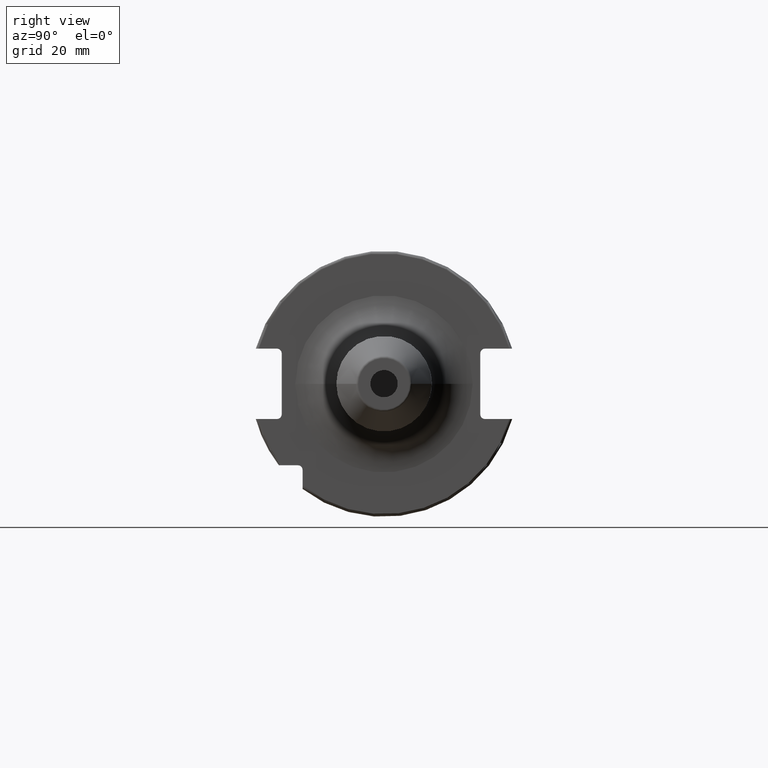
[diagram: clean part render]
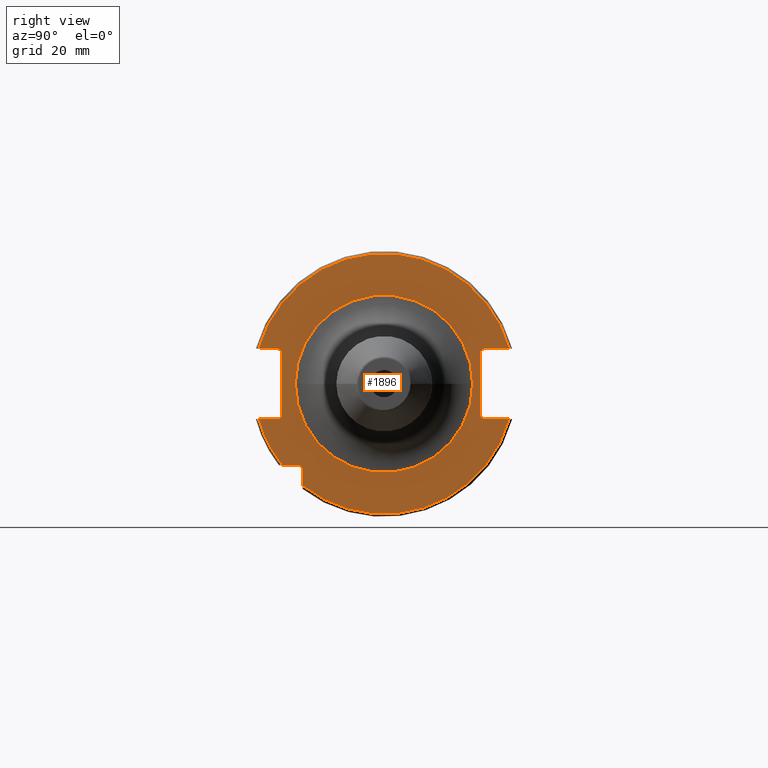
[diagram: same view with one face highlighted and labeled with its STEP entity id]
A machine part, right view. The second image highlights one B-rep face of the part: STEP entity #1896.
In plain terms, the highlighted planar face has unit normal (1, 0, 0).
Its self-contained STEP definition (entity closure, byte-faithful):
#130=CARTESIAN_POINT('',(1.905E1,3.705E1,1.115E1));
#131=DIRECTION('',(-1.E0,0.E0,0.E0));
#132=DIRECTION('',(0.E0,-1.E0,0.E0));
#133=AXIS2_PLACEMENT_3D('',#130,#131,#132);
#140=DIRECTION('',(0.E0,0.E0,1.E0));
#141=VECTOR('',#140,2.23E1);
#142=CARTESIAN_POINT('',(1.905E1,-3.75E1,-1.115E1));
#143=LINE('',#142,#141);
#144=DIRECTION('',(0.E0,1.E0,0.E0));
#145=VECTOR('',#144,6.711493733886E0);
#146=CARTESIAN_POINT('',(1.905E1,-4.596149373389E1,1.29E1));
#147=LINE('',#146,#145);
#148=DIRECTION('',(0.E0,-1.E0,0.E0));
#149=VECTOR('',#148,8.911493733886E0);
#150=CARTESIAN_POINT('',(1.905E1,4.596149373389E1,1.29E1));
#151=LINE('',#150,#149);
#152=DIRECTION('',(0.E0,0.E0,-1.E0));
#153=VECTOR('',#152,2.23E1);
#154=CARTESIAN_POINT('',(1.905E1,3.53E1,1.115E1));
#155=LINE('',#154,#153);
#156=DIRECTION('',(0.E0,-1.E0,0.E0));
#157=VECTOR('',#156,8.911493733886E0);
#158=CARTESIAN_POINT('',(1.905E1,4.596149373389E1,-1.29E1));
#159=LINE('',#158,#157);
#160=DIRECTION('',(0.E0,0.E0,1.E0));
#161=VECTOR('',#160,5.653810627237E0);
#162=CARTESIAN_POINT('',(1.905E1,-2.985E1,-3.725381062724E1));
#163=LINE('',#162,#161);
#164=DIRECTION('',(0.E0,-1.E0,0.E0));
#165=VECTOR('',#164,5.653810627237E0);
#166=CARTESIAN_POINT('',(1.905E1,-3.16E1,-2.985E1));
#167=LINE('',#166,#165);
#168=DIRECTION('',(0.E0,1.E0,0.E0));
#169=VECTOR('',#168,6.711493733886E0);
#170=CARTESIAN_POINT('',(1.905E1,-4.596149373389E1,-1.29E1));
#171=LINE('',#170,#169);
#172=CARTESIAN_POINT('',(1.905E1,0.E0,0.E0));
#173=DIRECTION('',(1.E0,0.E0,0.E0));
#174=DIRECTION('',(0.E0,-1.E0,0.E0));
#175=AXIS2_PLACEMENT_3D('',#172,#173,#174);
#177=CARTESIAN_POINT('',(1.905E1,0.E0,0.E0));
#178=DIRECTION('',(1.E0,0.E0,0.E0));
#179=DIRECTION('',(0.E0,1.E0,0.E0));
#180=AXIS2_PLACEMENT_3D('',#177,#178,#179);
#190=CARTESIAN_POINT('',(1.905E1,-3.925E1,-1.115E1));
#191=DIRECTION('',(-1.E0,0.E0,0.E0));
#192=DIRECTION('',(0.E0,1.E0,0.E0));
#193=AXIS2_PLACEMENT_3D('',#190,#191,#192);
#213=CARTESIAN_POINT('',(1.905E1,4.596149373389E1,-1.29E1));
#225=CARTESIAN_POINT('',(1.905E1,0.E0,0.E0));
#226=DIRECTION('',(-1.E0,0.E0,0.E0));
#227=DIRECTION('',(0.E0,9.627964123359E-1,-2.702278083268E-1));
#228=AXIS2_PLACEMENT_3D('',#225,#226,#227);
#230=CARTESIAN_POINT('',(1.905E1,-4.596149373389E1,-1.29E1));
#241=CARTESIAN_POINT('',(1.905E1,0.E0,0.E0));
#242=DIRECTION('',(-1.E0,0.E0,0.E0));
#243=DIRECTION('',(0.E0,-7.803888060170E-1,-6.252945797329E-1));
#244=AXIS2_PLACEMENT_3D('',#241,#242,#243);
#255=CARTESIAN_POINT('',(1.905E1,-3.725381062724E1,-2.985E1));
#261=CARTESIAN_POINT('',(1.905E1,3.705E1,-1.115E1));
#262=DIRECTION('',(-1.E0,0.E0,0.E0));
#263=DIRECTION('',(0.E0,0.E0,-1.E0));
#264=AXIS2_PLACEMENT_3D('',#261,#262,#263);
#326=CARTESIAN_POINT('',(1.905E1,-3.925E1,1.115E1));
#327=DIRECTION('',(-1.E0,0.E0,0.E0));
#328=DIRECTION('',(0.E0,0.E0,1.E0));
#329=AXIS2_PLACEMENT_3D('',#326,#327,#328);
#367=CARTESIAN_POINT('',(1.905E1,4.596149373389E1,1.29E1));
#378=CARTESIAN_POINT('',(1.905E1,0.E0,0.E0));
#379=DIRECTION('',(1.E0,0.E0,0.E0));
#380=DIRECTION('',(0.E0,9.627964123359E-1,2.702278083268E-1));
#381=AXIS2_PLACEMENT_3D('',#378,#379,#380);
#392=CARTESIAN_POINT('',(1.905E1,-4.596149373389E1,1.29E1));
#741=CARTESIAN_POINT('',(1.905E1,-3.16E1,-3.16E1));
#742=DIRECTION('',(-1.E0,0.E0,0.E0));
#743=DIRECTION('',(0.E0,0.E0,1.E0));
#744=AXIS2_PLACEMENT_3D('',#741,#742,#743);
#1539=VERTEX_POINT('',#367);
#1540=VERTEX_POINT('',#392);
#1543=VERTEX_POINT('',#213);
#1544=VERTEX_POINT('',#230);
#1563=CARTESIAN_POINT('',(1.905E1,-2.985E1,-3.725381062724E1));
#1564=VERTEX_POINT('',#1563);
#1571=CARTESIAN_POINT('',(1.905E1,-3.75E1,-1.115E1));
#1573=VERTEX_POINT('',#1571);
#1575=CARTESIAN_POINT('',(1.905E1,-3.925E1,-1.29E1));
#1577=VERTEX_POINT('',#1575);
#1579=CARTESIAN_POINT('',(1.905E1,-3.925E1,1.29E1));
#1581=VERTEX_POINT('',#1579);
#1583=CARTESIAN_POINT('',(1.905E1,-3.75E1,1.115E1));
#1585=VERTEX_POINT('',#1583);
#1587=CARTESIAN_POINT('',(1.905E1,3.53E1,1.115E1));
#1589=VERTEX_POINT('',#1587);
#1591=CARTESIAN_POINT('',(1.905E1,3.705E1,1.29E1));
#1593=VERTEX_POINT('',#1591);
#1595=CARTESIAN_POINT('',(1.905E1,3.705E1,-1.29E1));
#1597=VERTEX_POINT('',#1595);
#1599=CARTESIAN_POINT('',(1.905E1,3.53E1,-1.115E1));
#1601=VERTEX_POINT('',#1599);
#1603=CARTESIAN_POINT('',(1.905E1,-3.16E1,-2.985E1));
#1604=CARTESIAN_POINT('',(1.905E1,-2.985E1,-3.16E1));
#1605=VERTEX_POINT('',#1603);
#1606=VERTEX_POINT('',#1604);
#1627=CARTESIAN_POINT('',(1.905E1,-3.25E1,0.E0));
#1628=CARTESIAN_POINT('',(1.905E1,3.25E1,0.E0));
#1629=VERTEX_POINT('',#1627);
#1630=VERTEX_POINT('',#1628);
#1668=VERTEX_POINT('',#255);
#1853=CARTESIAN_POINT('',(1.905E1,0.E0,0.E0));
#1854=DIRECTION('',(1.E0,0.E0,0.E0));
#1855=DIRECTION('',(0.E0,-1.E0,0.E0));
#1856=AXIS2_PLACEMENT_3D('',#1853,#1854,#1855);
#1857=PLANE('',#1856);
#1859=ORIENTED_EDGE('',*,*,#1858,.T.);
#1861=ORIENTED_EDGE('',*,*,#1860,.F.);
#1863=ORIENTED_EDGE('',*,*,#1862,.F.);
#1865=ORIENTED_EDGE('',*,*,#1864,.F.);
#1867=ORIENTED_EDGE('',*,*,#1866,.T.);
#1868=ORIENTED_EDGE('',*,*,#1844,.F.);
#1869=ORIENTED_EDGE('',*,*,#1833,.T.);
#1871=ORIENTED_EDGE('',*,*,#1870,.F.);
#1873=ORIENTED_EDGE('',*,*,#1872,.F.);
#1875=ORIENTED_EDGE('',*,*,#1874,.T.);
#1877=ORIENTED_EDGE('',*,*,#1876,.T.);
#1879=ORIENTED_EDGE('',*,*,#1878,.F.);
#1881=ORIENTED_EDGE('',*,*,#1880,.T.);
#1883=ORIENTED_EDGE('',*,*,#1882,.T.);
#1885=ORIENTED_EDGE('',*,*,#1884,.T.);
#1887=ORIENTED_EDGE('',*,*,#1886,.F.);
#1888=EDGE_LOOP('',(#1859,#1861,#1863,#1865,#1867,#1868,#1869,#1871,#1873,#1875,
#1877,#1879,#1881,#1883,#1885,#1887));
#1889=FACE_OUTER_BOUND('',#1888,.F.);
#1891=ORIENTED_EDGE('',*,*,#1890,.T.);
#1893=ORIENTED_EDGE('',*,*,#1892,.T.);
#1894=EDGE_LOOP('',(#1891,#1893));
#1895=FACE_BOUND('',#1894,.F.);
#1896=ADVANCED_FACE('',(#1889,#1895),#1857,.T.);
#134=CIRCLE('',#133,1.75E0);
#176=CIRCLE('',#175,3.25E1);
#181=CIRCLE('',#180,3.25E1);
#194=CIRCLE('',#193,1.75E0);
#229=CIRCLE('',#228,4.77375E1);
#245=CIRCLE('',#244,4.77375E1);
#265=CIRCLE('',#264,1.75E0);
#330=CIRCLE('',#329,1.75E0);
#382=CIRCLE('',#381,4.77375E1);
#745=CIRCLE('',#744,1.75E0);
#1833=EDGE_CURVE('',#1589,#1601,#155,.T.);
#1844=EDGE_CURVE('',#1589,#1593,#134,.T.);
#1858=EDGE_CURVE('',#1573,#1585,#143,.T.);
#1860=EDGE_CURVE('',#1581,#1585,#330,.T.);
#1862=EDGE_CURVE('',#1540,#1581,#147,.T.);
#1864=EDGE_CURVE('',#1539,#1540,#382,.T.);
#1866=EDGE_CURVE('',#1539,#1593,#151,.T.);
#1870=EDGE_CURVE('',#1597,#1601,#265,.T.);
#1872=EDGE_CURVE('',#1543,#1597,#159,.T.);
#1874=EDGE_CURVE('',#1543,#1564,#229,.T.);
#1876=EDGE_CURVE('',#1564,#1606,#163,.T.);
#1878=EDGE_CURVE('',#1605,#1606,#745,.T.);
#1880=EDGE_CURVE('',#1605,#1668,#167,.T.);
#1882=EDGE_CURVE('',#1668,#1544,#245,.T.);
#1884=EDGE_CURVE('',#1544,#1577,#171,.T.);
#1886=EDGE_CURVE('',#1573,#1577,#194,.T.);
#1890=EDGE_CURVE('',#1629,#1630,#176,.T.);
#1892=EDGE_CURVE('',#1630,#1629,#181,.T.);